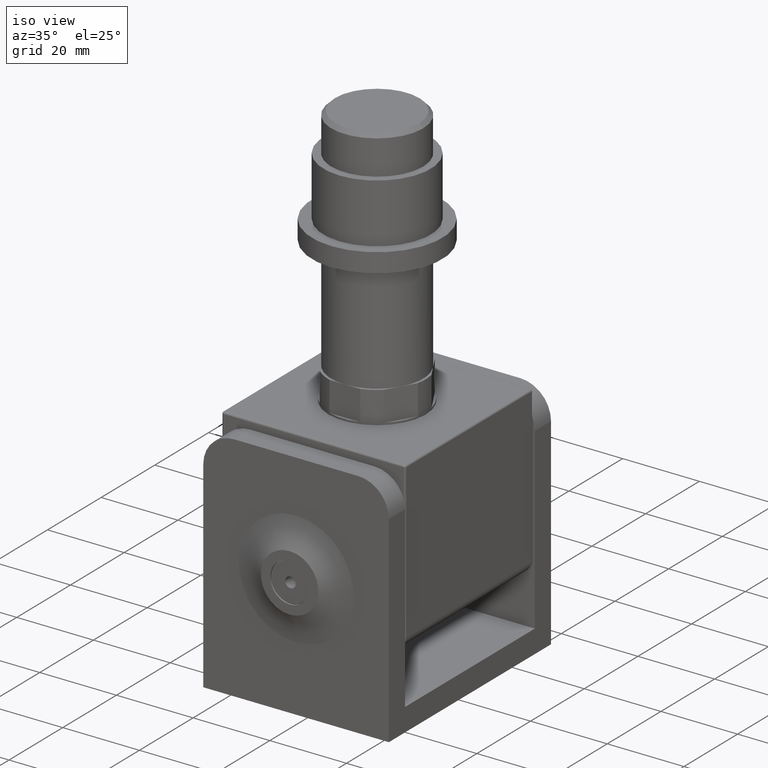
[diagram: clean part render]
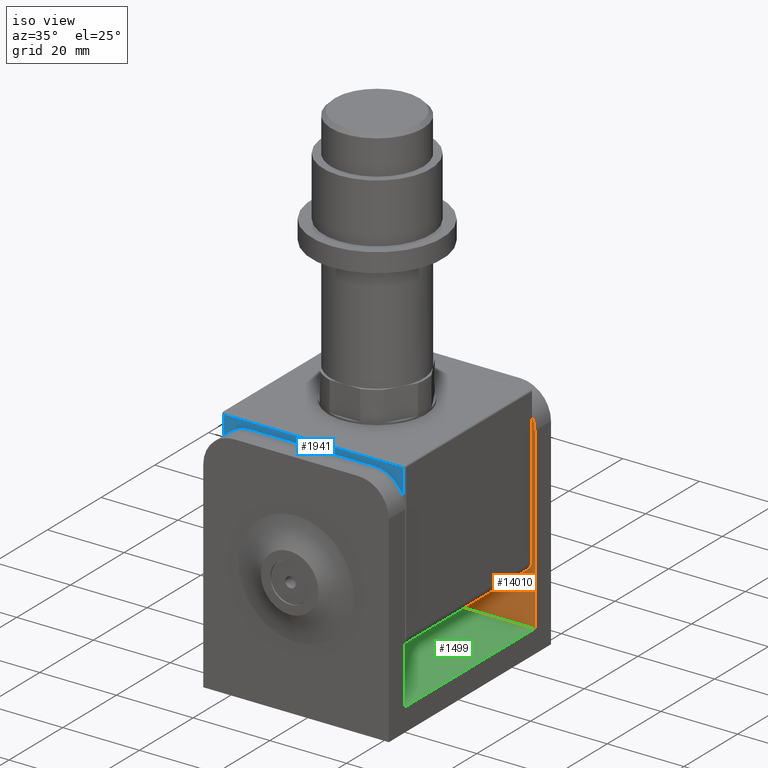
[diagram: same view with three faces highlighted in distinct colors, each labeled with its STEP entity id]
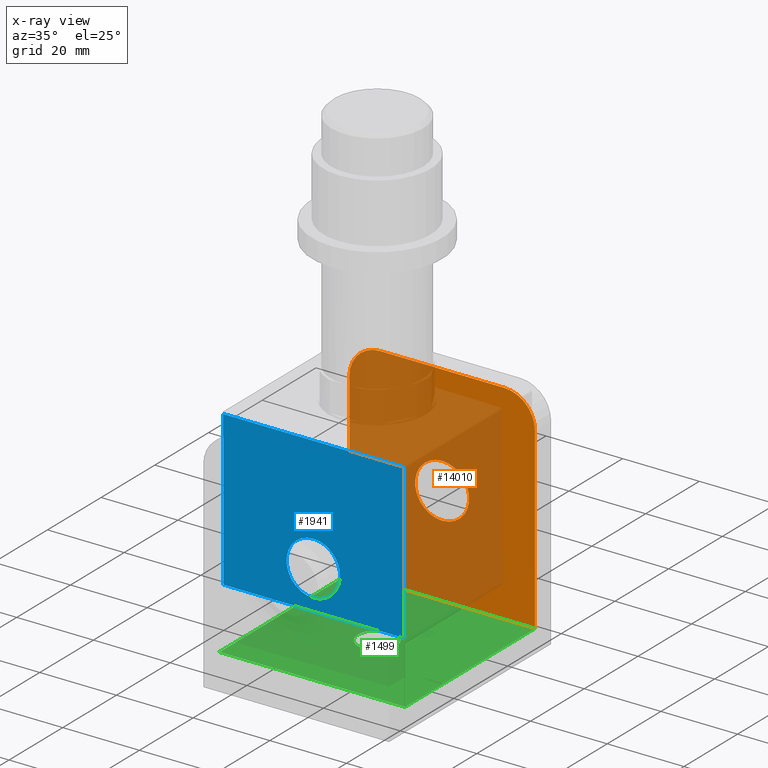
[diagram: x-ray of the same camera — body ghosted, the three highlighted faces saturated]
A machine part, iso view with three faces highlighted in distinct colors.
The next image is the same camera in x-ray (body ghosted, the three faces saturated) — at least one of them is partly hidden behind the body in this view.
Their STEP definitions:

[orange] entity #14010 — the highlighted planar face has unit normal (0, 1, 0).
#94 = LINE ( 'NONE', #2203, #14057 ) ;
#117 = VERTEX_POINT ( 'NONE', #15342 ) ;
#143 = DIRECTION ( 'NONE',  ( -0.000000000000000000, -1.000000000000000000, -0.000000000000000000 ) ) ;
#457 = CIRCLE ( 'NONE', #2643, 7.049999999999999822 ) ;
#494 = ORIENTED_EDGE ( 'NONE', *, *, #4483, .F. ) ;
#529 = EDGE_LOOP ( 'NONE', ( #494, #8979, #2574, #9023, #5005, #5792 ) ) ;
#1172 = EDGE_CURVE ( 'NONE', #4911, #117, #1819, .T. ) ;
#1418 = CARTESIAN_POINT ( 'NONE',  ( 0.000000000000000000, 24.19999999999999218, 8.749999999999996447 ) ) ;
#1616 = DIRECTION ( 'NONE',  ( 0.000000000000000000, 0.000000000000000000, 1.000000000000000000 ) ) ;
#1819 = CIRCLE ( 'NONE', #14109, 8.000000000000000000 ) ;
#2203 = CARTESIAN_POINT ( 'NONE',  ( -24.19999999999999929, 24.19999999999999218, -24.29999999999998295 ) ) ;
#2372 = CIRCLE ( 'NONE', #11895, 8.000000000000000000 ) ;
#2507 = DIRECTION ( 'NONE',  ( -0.000000000000000000, -0.000000000000000000, -1.000000000000000000 ) ) ;
#2533 = VERTEX_POINT ( 'NONE', #13920 ) ;
#2563 = EDGE_LOOP ( 'NONE', ( #4749 ) ) ;
#2574 = ORIENTED_EDGE ( 'NONE', *, *, #5930, .T. ) ;
#2643 = AXIS2_PLACEMENT_3D ( 'NONE', #2875, #15236, #9168 ) ;
#2694 = VECTOR ( 'NONE', #2507, 1000.000000000000000 ) ;
#2789 = DIRECTION ( 'NONE',  ( -1.000000000000000000, -0.000000000000000000, -0.000000000000000000 ) ) ;
#2875 = CARTESIAN_POINT ( 'NONE',  ( 0.000000000000000000, 24.19999999999999218, 1.699999999999995959 ) ) ;
#3235 = VERTEX_POINT ( 'NONE', #1418 ) ;
#3847 = FACE_OUTER_BOUND ( 'NONE', #529, .T. ) ;
#3951 = CARTESIAN_POINT ( 'NONE',  ( 24.19999999999999929, 24.19999999999999218, -24.29999999999998295 ) ) ;
#4070 = VECTOR ( 'NONE', #2789, 1000.000000000000000 ) ;
#4483 = EDGE_CURVE ( 'NONE', #13950, #15283, #10373, .T. ) ;
#4559 = DIRECTION ( 'NONE',  ( -0.000000000000000000, -0.000000000000000000, -1.000000000000000000 ) ) ;
#4749 = ORIENTED_EDGE ( 'NONE', *, *, #8702, .F. ) ;
#4911 = VERTEX_POINT ( 'NONE', #6726 ) ;
#5005 = ORIENTED_EDGE ( 'NONE', *, *, #10950, .T. ) ;
#5303 = DIRECTION ( 'NONE',  ( -0.000000000000000000, -1.000000000000000000, -0.000000000000000000 ) ) ;
#5718 = AXIS2_PLACEMENT_3D ( 'NONE', #14411, #8291, #15463 ) ;
#5792 = ORIENTED_EDGE ( 'NONE', *, *, #7565, .F. ) ;
#5930 = EDGE_CURVE ( 'NONE', #2533, #4911, #13437, .T. ) ;
#6726 = CARTESIAN_POINT ( 'NONE',  ( -16.19999999999999929, 24.19999999999999218, 30.29999999999999361 ) ) ;
#6995 = VERTEX_POINT ( 'NONE', #9848 ) ;
#7246 = FACE_BOUND ( 'NONE', #2563, .T. ) ;
#7529 = EDGE_CURVE ( 'NONE', #13950, #2533, #2372, .T. ) ;
#7565 = EDGE_CURVE ( 'NONE', #15283, #6995, #12743, .T. ) ;
#8291 = DIRECTION ( 'NONE',  ( 0.000000000000000000, 1.000000000000000000, 0.000000000000000000 ) ) ;
#8348 = CARTESIAN_POINT ( 'NONE',  ( 24.19999999999999929, 24.19999999999999218, -24.29999999999998295 ) ) ;
#8514 = DIRECTION ( 'NONE',  ( 0.000000000000000000, 0.000000000000000000, 1.000000000000000000 ) ) ;
#8542 = CARTESIAN_POINT ( 'NONE',  ( 24.19999999999999929, 24.19999999999999218, -24.29999999999998295 ) ) ;
#8702 = EDGE_CURVE ( 'NONE', #3235, #3235, #457, .T. ) ;
#8907 = CARTESIAN_POINT ( 'NONE',  ( -16.19999999999999929, 24.19999999999999218, 22.29999999999999361 ) ) ;
#8979 = ORIENTED_EDGE ( 'NONE', *, *, #7529, .T. ) ;
#9023 = ORIENTED_EDGE ( 'NONE', *, *, #1172, .T. ) ;
#9168 = DIRECTION ( 'NONE',  ( 0.000000000000000000, 0.000000000000000000, 1.000000000000000000 ) ) ;
#9236 = CARTESIAN_POINT ( 'NONE',  ( 24.19999999999999929, 24.19999999999999218, 22.29999999999999361 ) ) ;
#9848 = CARTESIAN_POINT ( 'NONE',  ( -24.19999999999999929, 24.19999999999999218, -24.29999999999998295 ) ) ;
#10373 = LINE ( 'NONE', #8348, #2694 ) ;
#10950 = EDGE_CURVE ( 'NONE', #117, #6995, #94, .T. ) ;
#11874 = PLANE ( 'NONE',  #5718 ) ;
#11895 = AXIS2_PLACEMENT_3D ( 'NONE', #12099, #143, #8514 ) ;
#12099 = CARTESIAN_POINT ( 'NONE',  ( 16.19999999999999929, 24.19999999999999218, 22.29999999999999361 ) ) ;
#12684 = VECTOR ( 'NONE', #15048, 1000.000000000000000 ) ;
#12736 = CARTESIAN_POINT ( 'NONE',  ( 24.19999999999999929, 24.19999999999999218, 30.29999999999999361 ) ) ;
#12743 = LINE ( 'NONE', #3951, #4070 ) ;
#13437 = LINE ( 'NONE', #12736, #12684 ) ;
#13920 = CARTESIAN_POINT ( 'NONE',  ( 16.19999999999999929, 24.19999999999999218, 30.29999999999999361 ) ) ;
#13950 = VERTEX_POINT ( 'NONE', #9236 ) ;
#14010 = ADVANCED_FACE ( 'NONE', ( #7246, #3847 ), #11874, .F. ) ;
#14057 = VECTOR ( 'NONE', #4559, 1000.000000000000000 ) ;
#14109 = AXIS2_PLACEMENT_3D ( 'NONE', #8907, #5303, #1616 ) ;
#14411 = CARTESIAN_POINT ( 'NONE',  ( 24.19999999999999929, 24.19999999999999218, -24.29999999999998295 ) ) ;
#15048 = DIRECTION ( 'NONE',  ( -1.000000000000000000, -0.000000000000000000, -0.000000000000000000 ) ) ;
#15236 = DIRECTION ( 'NONE',  ( -0.000000000000000000, -1.000000000000000000, -0.000000000000000000 ) ) ;
#15283 = VERTEX_POINT ( 'NONE', #8542 ) ;
#15342 = CARTESIAN_POINT ( 'NONE',  ( -24.19999999999999929, 24.19999999999999218, 22.29999999999999361 ) ) ;
#15463 = DIRECTION ( 'NONE',  ( 0.000000000000000000, -0.000000000000000000, 1.000000000000000000 ) ) ;

[blue] entity #1941 — the highlighted planar face has unit normal (0, 1, 0).
#59 = LINE ( 'NONE', #4114, #10216 ) ;
#787 = VERTEX_POINT ( 'NONE', #9883 ) ;
#925 = VERTEX_POINT ( 'NONE', #14527 ) ;
#1639 = EDGE_LOOP ( 'NONE', ( #8192, #6706, #5449, #8200 ) ) ;
#1941 = ADVANCED_FACE ( 'NONE', ( #3115, #2370 ), #10592, .F. ) ;
#2054 = EDGE_CURVE ( 'NONE', #925, #6978, #5587, .T. ) ;
#2073 = EDGE_CURVE ( 'NONE', #10993, #7296, #8000, .T. ) ;
#2370 = FACE_BOUND ( 'NONE', #8285, .T. ) ;
#3115 = FACE_OUTER_BOUND ( 'NONE', #1639, .T. ) ;
#3275 = DIRECTION ( 'NONE',  ( 1.606225440719266120E-16, -0.000000000000000000, 1.000000000000000000 ) ) ;
#3638 = CARTESIAN_POINT ( 'NONE',  ( 23.44999999999999218, -23.75000000000000000, -19.10000000000000142 ) ) ;
#3650 = VECTOR ( 'NONE', #3275, 1000.000000000000000 ) ;
#4114 = CARTESIAN_POINT ( 'NONE',  ( -23.45000000000000284, -23.75000000000000000, 3.469446951953614189E-15 ) ) ;
#4739 = DIRECTION ( 'NONE',  ( 0.000000000000000000, 1.000000000000000000, 0.000000000000000000 ) ) ;
#4947 = AXIS2_PLACEMENT_3D ( 'NONE', #9494, #4739, #9398 ) ;
#5094 = CARTESIAN_POINT ( 'NONE',  ( 0.000000000000000000, -23.75000000000000000, -19.10000000000000142 ) ) ;
#5208 = EDGE_CURVE ( 'NONE', #787, #787, #5906, .T. ) ;
#5449 = ORIENTED_EDGE ( 'NONE', *, *, #2054, .T. ) ;
#5488 = ORIENTED_EDGE ( 'NONE', *, *, #5208, .T. ) ;
#5587 = LINE ( 'NONE', #5094, #14813 ) ;
#5661 = CARTESIAN_POINT ( 'NONE',  ( -23.44999999999999929, -23.75000000000000000, 21.10000000000000142 ) ) ;
#5725 = CARTESIAN_POINT ( 'NONE',  ( 23.44999999999999574, -23.75000000000000000, -3.469446951953614189E-15 ) ) ;
#5906 = CIRCLE ( 'NONE', #12812, 7.000000000000000000 ) ;
#6306 = DIRECTION ( 'NONE',  ( 1.000000000000000000, -0.000000000000000000, -0.000000000000000000 ) ) ;
#6706 = ORIENTED_EDGE ( 'NONE', *, *, #13788, .T. ) ;
#6760 = DIRECTION ( 'NONE',  ( -1.606225440719266120E-16, 0.000000000000000000, -1.000000000000000000 ) ) ;
#6978 = VERTEX_POINT ( 'NONE', #3638 ) ;
#7056 = CARTESIAN_POINT ( 'NONE',  ( 23.44999999999999929, -23.75000000000000000, 21.10000000000000142 ) ) ;
#7296 = VERTEX_POINT ( 'NONE', #5661 ) ;
#7306 = DIRECTION ( 'NONE',  ( 0.000000000000000000, 1.000000000000000000, 0.000000000000000000 ) ) ;
#8000 = LINE ( 'NONE', #11190, #11400 ) ;
#8192 = ORIENTED_EDGE ( 'NONE', *, *, #2073, .T. ) ;
#8200 = ORIENTED_EDGE ( 'NONE', *, *, #13514, .T. ) ;
#8285 = EDGE_LOOP ( 'NONE', ( #5488 ) ) ;
#9398 = DIRECTION ( 'NONE',  ( 0.000000000000000000, -0.000000000000000000, 1.000000000000000000 ) ) ;
#9494 = CARTESIAN_POINT ( 'NONE',  ( 0.000000000000000000, -23.75000000000000000, 0.000000000000000000 ) ) ;
#9640 = CARTESIAN_POINT ( 'NONE',  ( -6.938893903907228378E-15, -23.75000000000000000, -9.000000000000001776 ) ) ;
#9883 = CARTESIAN_POINT ( 'NONE',  ( -6.938893903907228378E-15, -23.75000000000000000, -2.000000000000000888 ) ) ;
#10216 = VECTOR ( 'NONE', #6760, 1000.000000000000000 ) ;
#10592 = PLANE ( 'NONE',  #4947 ) ;
#10993 = VERTEX_POINT ( 'NONE', #7056 ) ;
#11190 = CARTESIAN_POINT ( 'NONE',  ( 0.000000000000000000, -23.75000000000000000, 21.10000000000000142 ) ) ;
#11400 = VECTOR ( 'NONE', #13618, 1000.000000000000000 ) ;
#12812 = AXIS2_PLACEMENT_3D ( 'NONE', #9640, #7306, #13403 ) ;
#13403 = DIRECTION ( 'NONE',  ( 0.000000000000000000, 0.000000000000000000, 1.000000000000000000 ) ) ;
#13458 = LINE ( 'NONE', #5725, #3650 ) ;
#13514 = EDGE_CURVE ( 'NONE', #6978, #10993, #13458, .T. ) ;
#13618 = DIRECTION ( 'NONE',  ( -1.000000000000000000, 0.000000000000000000, -0.000000000000000000 ) ) ;
#13788 = EDGE_CURVE ( 'NONE', #7296, #925, #59, .T. ) ;
#14527 = CARTESIAN_POINT ( 'NONE',  ( -23.45000000000000639, -23.75000000000000000, -19.10000000000000142 ) ) ;
#14813 = VECTOR ( 'NONE', #6306, 1000.000000000000000 ) ;

[green] entity #1499 — the highlighted planar face has unit normal (0, 0, -1).
#1444 = FACE_BOUND ( 'NONE', #14708, .T. ) ;
#1499 = ADVANCED_FACE ( 'NONE', ( #1444, #6553 ), #3285, .F. ) ;
#1779 = CARTESIAN_POINT ( 'NONE',  ( -24.19999999999999929, -24.19999999999999218, -24.29999999999998295 ) ) ;
#2024 = ORIENTED_EDGE ( 'NONE', *, *, #9361, .T. ) ;
#2064 = CARTESIAN_POINT ( 'NONE',  ( -24.19999999999999929, -24.19999999999999218, -24.29999999999998295 ) ) ;
#2129 = LINE ( 'NONE', #6813, #4030 ) ;
#2236 = ORIENTED_EDGE ( 'NONE', *, *, #7565, .T. ) ;
#2465 = EDGE_CURVE ( 'NONE', #11124, #2871, #4819, .T. ) ;
#2568 = AXIS2_PLACEMENT_3D ( 'NONE', #10969, #11031, #11091 ) ;
#2789 = DIRECTION ( 'NONE',  ( -1.000000000000000000, -0.000000000000000000, -0.000000000000000000 ) ) ;
#2871 = VERTEX_POINT ( 'NONE', #1779 ) ;
#3191 = CARTESIAN_POINT ( 'NONE',  ( 24.19999999999999929, -24.19999999999999218, -24.29999999999998295 ) ) ;
#3285 = PLANE ( 'NONE',  #13822 ) ;
#3894 = CIRCLE ( 'NONE', #2568, 4.999999999999997335 ) ;
#3951 = CARTESIAN_POINT ( 'NONE',  ( 24.19999999999999929, 24.19999999999999218, -24.29999999999998295 ) ) ;
#4030 = VECTOR ( 'NONE', #15215, 1000.000000000000000 ) ;
#4070 = VECTOR ( 'NONE', #2789, 1000.000000000000000 ) ;
#4819 = LINE ( 'NONE', #15577, #6336 ) ;
#5463 = ORIENTED_EDGE ( 'NONE', *, *, #2465, .F. ) ;
#5551 = ORIENTED_EDGE ( 'NONE', *, *, #9575, .F. ) ;
#5929 = DIRECTION ( 'NONE',  ( -0.000000000000000000, -1.000000000000000000, -0.000000000000000000 ) ) ;
#6336 = VECTOR ( 'NONE', #14478, 1000.000000000000000 ) ;
#6553 = FACE_OUTER_BOUND ( 'NONE', #11114, .T. ) ;
#6813 = CARTESIAN_POINT ( 'NONE',  ( 24.19999999999999929, -24.19999999999999218, -24.29999999999998295 ) ) ;
#6995 = VERTEX_POINT ( 'NONE', #9848 ) ;
#7565 = EDGE_CURVE ( 'NONE', #15283, #6995, #12743, .T. ) ;
#8542 = CARTESIAN_POINT ( 'NONE',  ( 24.19999999999999929, 24.19999999999999218, -24.29999999999998295 ) ) ;
#8673 = CARTESIAN_POINT ( 'NONE',  ( 4.999999999999997335, 0.000000000000000000, -24.29999999999998295 ) ) ;
#9179 = DIRECTION ( 'NONE',  ( 0.000000000000000000, 0.000000000000000000, -1.000000000000000000 ) ) ;
#9361 = EDGE_CURVE ( 'NONE', #6995, #2871, #11734, .T. ) ;
#9575 = EDGE_CURVE ( 'NONE', #15283, #11124, #2129, .T. ) ;
#9848 = CARTESIAN_POINT ( 'NONE',  ( -24.19999999999999929, 24.19999999999999218, -24.29999999999998295 ) ) ;
#10213 = VECTOR ( 'NONE', #5929, 1000.000000000000000 ) ;
#10439 = ORIENTED_EDGE ( 'NONE', *, *, #12250, .F. ) ;
#10969 = CARTESIAN_POINT ( 'NONE',  ( 0.000000000000000000, 0.000000000000000000, -24.29999999999998295 ) ) ;
#11031 = DIRECTION ( 'NONE',  ( 0.000000000000000000, 0.000000000000000000, 1.000000000000000000 ) ) ;
#11091 = DIRECTION ( 'NONE',  ( 1.000000000000000000, 0.000000000000000000, 0.000000000000000000 ) ) ;
#11114 = EDGE_LOOP ( 'NONE', ( #2024, #5463, #5551, #2236 ) ) ;
#11124 = VERTEX_POINT ( 'NONE', #14320 ) ;
#11734 = LINE ( 'NONE', #2064, #10213 ) ;
#12250 = EDGE_CURVE ( 'NONE', #14162, #14162, #3894, .T. ) ;
#12743 = LINE ( 'NONE', #3951, #4070 ) ;
#13822 = AXIS2_PLACEMENT_3D ( 'NONE', #3191, #9179, #14040 ) ;
#14040 = DIRECTION ( 'NONE',  ( -1.000000000000000000, 0.000000000000000000, -0.000000000000000000 ) ) ;
#14162 = VERTEX_POINT ( 'NONE', #8673 ) ;
#14320 = CARTESIAN_POINT ( 'NONE',  ( 24.19999999999999929, -24.19999999999999218, -24.29999999999998295 ) ) ;
#14478 = DIRECTION ( 'NONE',  ( -1.000000000000000000, -0.000000000000000000, -0.000000000000000000 ) ) ;
#14708 = EDGE_LOOP ( 'NONE', ( #10439 ) ) ;
#15215 = DIRECTION ( 'NONE',  ( -0.000000000000000000, -1.000000000000000000, -0.000000000000000000 ) ) ;
#15283 = VERTEX_POINT ( 'NONE', #8542 ) ;
#15577 = CARTESIAN_POINT ( 'NONE',  ( 24.19999999999999929, -24.19999999999999218, -24.29999999999998295 ) ) ;